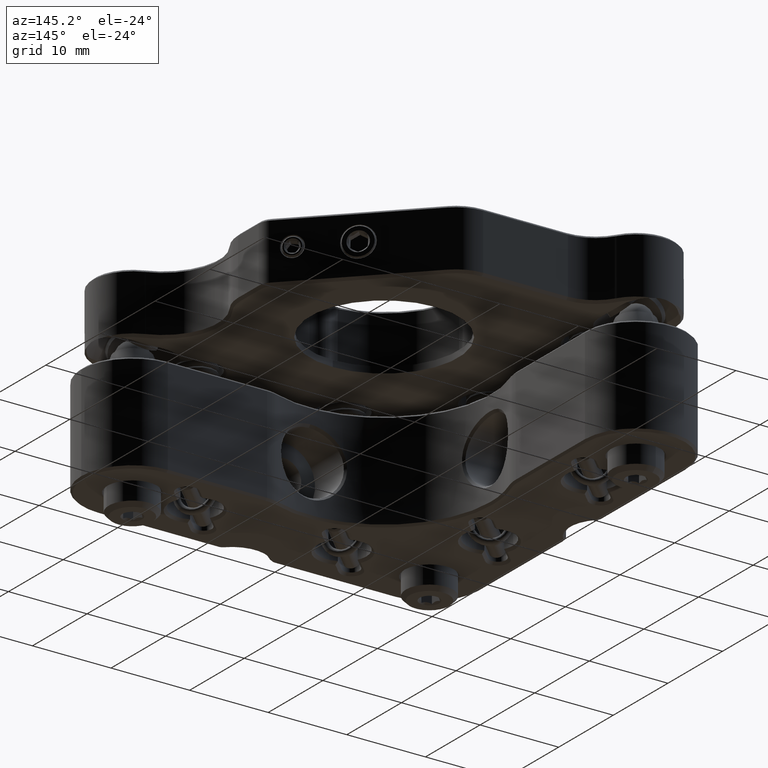
[diagram: clean part render]
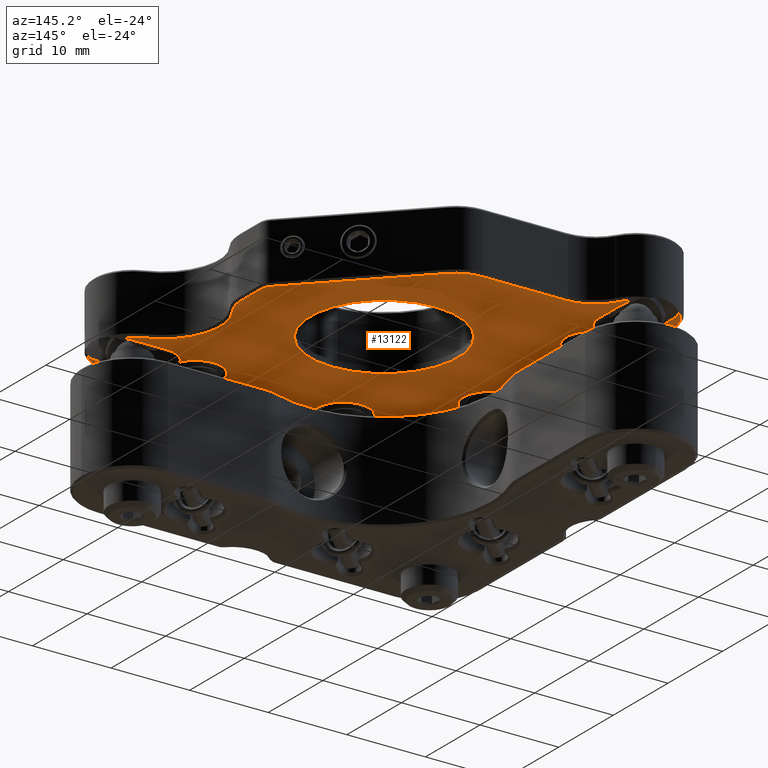
[diagram: same view with one face highlighted and labeled with its STEP entity id]
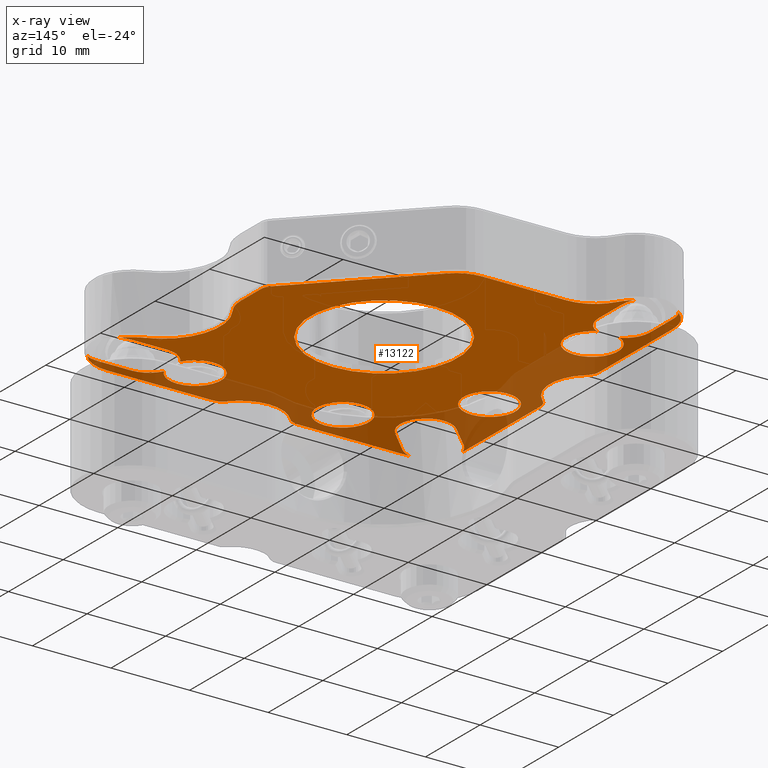
[diagram: x-ray of the same camera — body ghosted, the highlighted face saturated]
A machine part, auxiliary view. The second image highlights one B-rep face of the part: STEP entity #13122.
The next image is the same camera in x-ray: the body ghosted, the highlighted face saturated — about 24% of this face is hidden behind the body in this view.
In plain terms, the highlighted planar face has unit normal (0, 0, 1).
Its self-contained STEP definition (entity closure, byte-faithful):
#24 = DIRECTION ( 'NONE',  ( -0.000000000000000000, -0.000000000000000000, -1.000000000000000000 ) ) ;
#87 = AXIS2_PLACEMENT_3D ( 'NONE', #22900, #22756, #23325 ) ;
#147 = ORIENTED_EDGE ( 'NONE', *, *, #4367, .T. ) ;
#168 = CARTESIAN_POINT ( 'NONE',  ( -64.54999999999996874, -18.89999999999999503, -3.850000000000000089 ) ) ;
#213 = DIRECTION ( 'NONE',  ( 1.000000000000000000, 1.776246112369870620E-15, 0.000000000000000000 ) ) ;
#316 = DIRECTION ( 'NONE',  ( 0.000000000000000000, -1.000000000000000000, 0.000000000000000000 ) ) ;
#325 = ORIENTED_EDGE ( 'NONE', *, *, #14007, .F. ) ;
#347 = VERTEX_POINT ( 'NONE', #26387 ) ;
#403 = CARTESIAN_POINT ( 'NONE',  ( -47.79999999999997584, -26.39999999999998792, -3.850000000000000089 ) ) ;
#419 = CARTESIAN_POINT ( 'NONE',  ( -70.45581395348834519, -21.72557278207127496, -3.850000000000000089 ) ) ;
#480 = ORIENTED_EDGE ( 'NONE', *, *, #25135, .T. ) ;
#535 = DIRECTION ( 'NONE',  ( -0.000000000000000000, -0.000000000000000000, -1.000000000000000000 ) ) ;
#570 = EDGE_LOOP ( 'NONE', ( #21129, #5204, #21776, #9948, #24632, #19807, #5640, #18755, #22371, #2232, #10133, #24087, #4428, #25258, #13568, #19849, #4530, #19948, #17539, #18798, #19486, #18555, #27468, #10824, #1215, #325, #15592, #14142, #17555, #25760, #2236, #27836, #14401, #7783, #2796, #3482, #480, #4426, #20899, #27929, #12528, #7356, #26998, #10282, #23465, #24503 ) ) ;
#674 = CARTESIAN_POINT ( 'NONE',  ( -46.84695807969555403, 12.90000000000000036, -3.850000000000000089 ) ) ;
#706 = VERTEX_POINT ( 'NONE', #12438 ) ;
#771 = VERTEX_POINT ( 'NONE', #18768 ) ;
#774 = AXIS2_PLACEMENT_3D ( 'NONE', #5731, #10178, #18827 ) ;
#905 = DIRECTION ( 'NONE',  ( -0.000000000000000000, -0.000000000000000000, -1.000000000000000000 ) ) ;
#946 = DIRECTION ( 'NONE',  ( 1.000000000000000000, -5.521644416351492793E-16, 0.000000000000000000 ) ) ;
#1185 = AXIS2_PLACEMENT_3D ( 'NONE', #13558, #18143, #20011 ) ;
#1215 = ORIENTED_EDGE ( 'NONE', *, *, #13909, .T. ) ;
#1233 = CIRCLE ( 'NONE', #17741, 5.299999999999998934 ) ;
#1283 = CARTESIAN_POINT ( 'NONE',  ( -28.12218254069481205, -15.08162338159263349, -3.850000000000000089 ) ) ;
#1416 = DIRECTION ( 'NONE',  ( -1.000000000000000000, 0.000000000000000000, 0.000000000000000000 ) ) ;
#1616 = EDGE_CURVE ( 'NONE', #28156, #24555, #18795, .T. ) ;
#1716 = CIRCLE ( 'NONE', #11820, 3.249999999999999556 ) ;
#1724 = CARTESIAN_POINT ( 'NONE',  ( -32.14999999999999147, 16.74999999999999645, -3.850000000000000089 ) ) ;
#1770 = CIRCLE ( 'NONE', #14643, 3.300000000000004263 ) ;
#1904 = CARTESIAN_POINT ( 'NONE',  ( -43.74027370983946383, -22.99285714285713311, -3.850000000000000089 ) ) ;
#1958 = CARTESIAN_POINT ( 'NONE',  ( -32.71837661840734768, -19.67781745930522064, -3.850000000000000089 ) ) ;
#2004 = VERTEX_POINT ( 'NONE', #23100 ) ;
#2066 = VERTEX_POINT ( 'NONE', #24242 ) ;
#2103 = AXIS2_PLACEMENT_3D ( 'NONE', #6012, #16811, #20988 ) ;
#2160 = CARTESIAN_POINT ( 'NONE',  ( -24.24625680967455921, -19.55777984044790330, -3.850000000000000089 ) ) ;
#2183 = AXIS2_PLACEMENT_3D ( 'NONE', #19959, #26581, #24137 ) ;
#2216 = DIRECTION ( 'NONE',  ( -0.000000000000000000, -0.000000000000000000, -1.000000000000000000 ) ) ;
#2218 = VECTOR ( 'NONE', #27995, 1000.000000000000000 ) ;
#2232 = ORIENTED_EDGE ( 'NONE', *, *, #23336, .T. ) ;
#2236 = ORIENTED_EDGE ( 'NONE', *, *, #12034, .T. ) ;
#2252 = CARTESIAN_POINT ( 'NONE',  ( -30.42027957955107809, -17.37972042044892618, -3.850000000000000089 ) ) ;
#2279 = CARTESIAN_POINT ( 'NONE',  ( -57.19999999999998153, 0.000000000000000000, -3.850000000000000089 ) ) ;
#2342 = EDGE_CURVE ( 'NONE', #706, #27204, #12558, .T. ) ;
#2463 = CIRCLE ( 'NONE', #8365, 3.300000000000011369 ) ;
#2537 = VERTEX_POINT ( 'NONE', #11879 ) ;
#2545 = DIRECTION ( 'NONE',  ( -0.000000000000000000, -0.000000000000000000, -1.000000000000000000 ) ) ;
#2576 = CARTESIAN_POINT ( 'NONE',  ( -64.54999999999996874, -18.89999999999999503, -3.850000000000000089 ) ) ;
#2598 = AXIS2_PLACEMENT_3D ( 'NONE', #16527, #3578, #1416 ) ;
#2673 = CARTESIAN_POINT ( 'NONE',  ( -68.84999999999996589, -22.14999999999999858, -3.850000000000000089 ) ) ;
#2684 = CIRCLE ( 'NONE', #5883, 5.299999999999998934 ) ;
#2688 = DIRECTION ( 'NONE',  ( 1.000000000000000000, 0.000000000000000000, 0.000000000000000000 ) ) ;
#2760 = VERTEX_POINT ( 'NONE', #17305 ) ;
#2765 = DIRECTION ( 'NONE',  ( 1.000000000000000000, 0.000000000000000000, 0.000000000000000000 ) ) ;
#2796 = ORIENTED_EDGE ( 'NONE', *, *, #15566, .T. ) ;
#3009 = DIRECTION ( 'NONE',  ( -0.000000000000000000, -0.000000000000000000, -1.000000000000000000 ) ) ;
#3026 = VERTEX_POINT ( 'NONE', #26510 ) ;
#3167 = VERTEX_POINT ( 'NONE', #20736 ) ;
#3177 = AXIS2_PLACEMENT_3D ( 'NONE', #19184, #10679, #10968 ) ;
#3184 = CARTESIAN_POINT ( 'NONE',  ( -30.37303817960009766, 13.85299145299148016, -3.850000000000000089 ) ) ;
#3193 = AXIS2_PLACEMENT_3D ( 'NONE', #5786, #905, #3328 ) ;
#3213 = EDGE_CURVE ( 'NONE', #8082, #13686, #8332, .T. ) ;
#3290 = FACE_BOUND ( 'NONE', #14818, .T. ) ;
#3313 = VECTOR ( 'NONE', #10582, 999.9999999999998863 ) ;
#3328 = DIRECTION ( 'NONE',  ( 1.000000000000000000, -1.476360405086644655E-15, 0.000000000000000000 ) ) ;
#3331 = EDGE_CURVE ( 'NONE', #23707, #8220, #23052, .T. ) ;
#3345 = LINE ( 'NONE', #11862, #15680 ) ;
#3394 = AXIS2_PLACEMENT_3D ( 'NONE', #14781, #27873, #25285 ) ;
#3482 = ORIENTED_EDGE ( 'NONE', *, *, #1616, .T. ) ;
#3524 = CIRCLE ( 'NONE', #774, 9.399999999999998579 ) ;
#3531 = AXIS2_PLACEMENT_3D ( 'NONE', #6789, #19452, #8791 ) ;
#3569 = LINE ( 'NONE', #19098, #13155 ) ;
#3570 = CARTESIAN_POINT ( 'NONE',  ( -26.69999999999999574, -3.233067549749011224E-15, -3.850000000000000089 ) ) ;
#3578 = DIRECTION ( 'NONE',  ( 0.000000000000000000, 0.000000000000000000, 1.000000000000000000 ) ) ;
#3759 = VERTEX_POINT ( 'NONE', #5992 ) ;
#3793 = VECTOR ( 'NONE', #8656, 1000.000000000000000 ) ;
#3829 = DIRECTION ( 'NONE',  ( 1.000000000000000000, 0.000000000000000000, 0.000000000000000000 ) ) ;
#3936 = EDGE_CURVE ( 'NONE', #8548, #15872, #8705, .T. ) ;
#3983 = VERTEX_POINT ( 'NONE', #17205 ) ;
#4082 = CIRCLE ( 'NONE', #28421, 3.249999999999999556 ) ;
#4126 = EDGE_CURVE ( 'NONE', #22154, #25464, #12589, .T. ) ;
#4136 = VERTEX_POINT ( 'NONE', #16049 ) ;
#4160 = DIRECTION ( 'NONE',  ( -1.000000000000000000, 0.000000000000000000, 0.000000000000000000 ) ) ;
#4205 = VERTEX_POINT ( 'NONE', #2673 ) ;
#4321 = VERTEX_POINT ( 'NONE', #10266 ) ;
#4367 = EDGE_CURVE ( 'NONE', #25464, #22154, #2463, .T. ) ;
#4395 = CARTESIAN_POINT ( 'NONE',  ( -47.79999999999998295, -23.59999999999999432, -3.850000000000000089 ) ) ;
#4426 = ORIENTED_EDGE ( 'NONE', *, *, #14161, .T. ) ;
#4428 = ORIENTED_EDGE ( 'NONE', *, *, #3936, .T. ) ;
#4439 = AXIS2_PLACEMENT_3D ( 'NONE', #19403, #21701, #28180 ) ;
#4489 = CARTESIAN_POINT ( 'NONE',  ( -24.19999999999999218, 0.000000000000000000, -3.850000000000000089 ) ) ;
#4530 = ORIENTED_EDGE ( 'NONE', *, *, #23840, .T. ) ;
#4559 = CARTESIAN_POINT ( 'NONE',  ( -66.39999999999997726, -10.23974596215560595, -3.850000000000000089 ) ) ;
#4632 = VERTEX_POINT ( 'NONE', #3570 ) ;
#4650 = EDGE_CURVE ( 'NONE', #8398, #9191, #12137, .T. ) ;
#4656 = AXIS2_PLACEMENT_3D ( 'NONE', #2252, #6130, #14921 ) ;
#4688 = DIRECTION ( 'NONE',  ( 1.000000000000000000, 0.000000000000000000, 0.000000000000000000 ) ) ;
#4745 = VERTEX_POINT ( 'NONE', #14236 ) ;
#4793 = EDGE_CURVE ( 'NONE', #27850, #16151, #23109, .T. ) ;
#4859 = DIRECTION ( 'NONE',  ( -0.000000000000000000, -0.000000000000000000, -1.000000000000000000 ) ) ;
#4861 = DIRECTION ( 'NONE',  ( 1.000000000000000000, 0.000000000000000000, 0.000000000000000000 ) ) ;
#4992 = DIRECTION ( 'NONE',  ( 1.000000000000000000, 3.690901012716614397E-15, 0.000000000000000000 ) ) ;
#5192 = LINE ( 'NONE', #27199, #10837 ) ;
#5204 = ORIENTED_EDGE ( 'NONE', *, *, #22455, .T. ) ;
#5224 = AXIS2_PLACEMENT_3D ( 'NONE', #23424, #16812, #6144 ) ;
#5308 = DIRECTION ( 'NONE',  ( 1.000000000000000000, -2.952720810173289309E-15, 0.000000000000000000 ) ) ;
#5372 = VECTOR ( 'NONE', #946, 1000.000000000000000 ) ;
#5497 = VERTEX_POINT ( 'NONE', #21038 ) ;
#5542 = DIRECTION ( 'NONE',  ( 1.000000000000000000, 0.000000000000000000, 0.000000000000000000 ) ) ;
#5587 = VECTOR ( 'NONE', #22781, 1000.000000000000000 ) ;
#5637 = VERTEX_POINT ( 'NONE', #15682 ) ;
#5640 = ORIENTED_EDGE ( 'NONE', *, *, #3331, .T. ) ;
#5731 = CARTESIAN_POINT ( 'NONE',  ( -47.79999999999998295, 0.000000000000000000, -3.850000000000000089 ) ) ;
#5786 = CARTESIAN_POINT ( 'NONE',  ( -28.89999999999999147, 18.89999999999999503, -3.850000000000000089 ) ) ;
#5883 = AXIS2_PLACEMENT_3D ( 'NONE', #403, #13806, #4861 ) ;
#5961 = DIRECTION ( 'NONE',  ( 0.000000000000000000, 0.000000000000000000, 1.000000000000000000 ) ) ;
#5992 = CARTESIAN_POINT ( 'NONE',  ( -61.65299145299145067, -17.42696182039988173, -3.850000000000000089 ) ) ;
#6012 = CARTESIAN_POINT ( 'NONE',  ( -66.69999999999998863, -18.89999999999999147, -3.850000000000000089 ) ) ;
#6081 = DIRECTION ( 'NONE',  ( -0.000000000000000000, -0.000000000000000000, -1.000000000000000000 ) ) ;
#6130 = DIRECTION ( 'NONE',  ( -0.000000000000000000, -0.000000000000000000, 1.000000000000000000 ) ) ;
#6144 = DIRECTION ( 'NONE',  ( 1.000000000000000000, 0.000000000000000000, 0.000000000000000000 ) ) ;
#6298 = CARTESIAN_POINT ( 'NONE',  ( -28.89999999999998437, 10.90000000000005187, -3.850000000000000089 ) ) ;
#6383 = AXIS2_PLACEMENT_3D ( 'NONE', #15998, #9222, #2765 ) ;
#6443 = DIRECTION ( 'NONE',  ( 0.000000000000000000, 0.000000000000000000, 1.000000000000000000 ) ) ;
#6561 = VERTEX_POINT ( 'NONE', #18362 ) ;
#6776 = CIRCLE ( 'NONE', #13684, 3.249999999999999556 ) ;
#6789 = CARTESIAN_POINT ( 'NONE',  ( -50.56761902332480219, 15.90000000000000036, -3.850000000000000089 ) ) ;
#6912 = EDGE_CURVE ( 'NONE', #18071, #12511, #11319, .T. ) ;
#7015 = DIRECTION ( 'NONE',  ( -0.000000000000000000, -0.000000000000000000, -1.000000000000000000 ) ) ;
#7072 = CARTESIAN_POINT ( 'NONE',  ( -43.19999999999998153, -18.89999999999998792, -3.850000000000000089 ) ) ;
#7083 = EDGE_CURVE ( 'NONE', #5497, #21001, #1233, .T. ) ;
#7089 = CARTESIAN_POINT ( 'NONE',  ( -28.89999999999999147, -18.89999999999999503, -3.850000000000000089 ) ) ;
#7140 = AXIS2_PLACEMENT_3D ( 'NONE', #21664, #13202, #4688 ) ;
#7241 = EDGE_CURVE ( 'NONE', #2537, #6561, #24409, .T. ) ;
#7329 = CARTESIAN_POINT ( 'NONE',  ( -64.54999999999996874, -15.64999999999999680, -3.850000000000000089 ) ) ;
#7356 = ORIENTED_EDGE ( 'NONE', *, *, #17007, .T. ) ;
#7406 = LINE ( 'NONE', #20350, #5372 ) ;
#7426 = EDGE_CURVE ( 'NONE', #14419, #8548, #21657, .T. ) ;
#7601 = VECTOR ( 'NONE', #20586, 1000.000000000000000 ) ;
#7783 = ORIENTED_EDGE ( 'NONE', *, *, #15873, .T. ) ;
#7954 = VECTOR ( 'NONE', #17433, 1000.000000000000000 ) ;
#8040 = CIRCLE ( 'NONE', #11739, 1.700000000000000178 ) ;
#8082 = VERTEX_POINT ( 'NONE', #1724 ) ;
#8108 = AXIS2_PLACEMENT_3D ( 'NONE', #2576, #7015, #20117 ) ;
#8169 = DIRECTION ( 'NONE',  ( 0.000000000000000000, -1.000000000000000000, 0.000000000000000000 ) ) ;
#8220 = VERTEX_POINT ( 'NONE', #27718 ) ;
#8332 = CIRCLE ( 'NONE', #87, 3.249999999999999556 ) ;
#8355 = AXIS2_PLACEMENT_3D ( 'NONE', #168, #24, #316 ) ;
#8362 = CARTESIAN_POINT ( 'NONE',  ( -68.84999999999996589, -15.65000000000000036, -3.850000000000000089 ) ) ;
#8365 = AXIS2_PLACEMENT_3D ( 'NONE', #25520, #5961, #5542 ) ;
#8398 = VERTEX_POINT ( 'NONE', #17775 ) ;
#8507 = CIRCLE ( 'NONE', #1185, 3.249999999999999556 ) ;
#8515 = EDGE_CURVE ( 'NONE', #16151, #27850, #20452, .T. ) ;
#8548 = VERTEX_POINT ( 'NONE', #1958 ) ;
#8656 = DIRECTION ( 'NONE',  ( 1.000000000000000000, 4.440892098500625176E-16, 0.000000000000000000 ) ) ;
#8676 = DIRECTION ( 'NONE',  ( 1.000000000000000000, 0.000000000000000000, 0.000000000000000000 ) ) ;
#8705 = LINE ( 'NONE', #12902, #3313 ) ;
#8791 = DIRECTION ( 'NONE',  ( 1.000000000000000000, 0.000000000000000000, 0.000000000000000000 ) ) ;
#8805 = EDGE_CURVE ( 'NONE', #5637, #347, #8040, .T. ) ;
#8851 = AXIS2_PLACEMENT_3D ( 'NONE', #14244, #18118, #20561 ) ;
#8978 = AXIS2_PLACEMENT_3D ( 'NONE', #14671, #23432, #8169 ) ;
#9107 = CIRCLE ( 'NONE', #28395, 4.699999999999999289 ) ;
#9191 = VERTEX_POINT ( 'NONE', #16311 ) ;
#9213 = EDGE_CURVE ( 'NONE', #2066, #25190, #14298, .T. ) ;
#9217 = EDGE_CURVE ( 'NONE', #17184, #5637, #3345, .T. ) ;
#9222 = DIRECTION ( 'NONE',  ( 0.000000000000000000, 0.000000000000000000, 1.000000000000000000 ) ) ;
#9437 = DIRECTION ( 'NONE',  ( -0.000000000000000000, -0.000000000000000000, -1.000000000000000000 ) ) ;
#9480 = DIRECTION ( 'NONE',  ( 0.000000000000000000, 0.000000000000000000, 1.000000000000000000 ) ) ;
#9516 = ORIENTED_EDGE ( 'NONE', *, *, #4793, .T. ) ;
#9521 = DIRECTION ( 'NONE',  ( 1.000000000000000000, 0.000000000000000000, 0.000000000000000000 ) ) ;
#9544 = CIRCLE ( 'NONE', #24686, 4.700000000000002842 ) ;
#9718 = AXIS2_PLACEMENT_3D ( 'NONE', #27193, #16264, #25037 ) ;
#9806 = CARTESIAN_POINT ( 'NONE',  ( -64.54999999999998295, -22.14999999999999503, -3.850000000000000089 ) ) ;
#9948 = ORIENTED_EDGE ( 'NONE', *, *, #8805, .T. ) ;
#10133 = ORIENTED_EDGE ( 'NONE', *, *, #25196, .T. ) ;
#10178 = DIRECTION ( 'NONE',  ( -0.000000000000000000, -0.000000000000000000, -1.000000000000000000 ) ) ;
#10266 = CARTESIAN_POINT ( 'NONE',  ( -51.76970055134193416, 17.10208152801712700, -3.850000000000000089 ) ) ;
#10282 = ORIENTED_EDGE ( 'NONE', *, *, #20509, .T. ) ;
#10355 = CARTESIAN_POINT ( 'NONE',  ( -51.85972629016048785, -22.99285714285712956, -3.850000000000000089 ) ) ;
#10444 = LINE ( 'NONE', #4395, #2218 ) ;
#10532 = VERTEX_POINT ( 'NONE', #419 ) ;
#10556 = VERTEX_POINT ( 'NONE', #7329 ) ;
#10582 = DIRECTION ( 'NONE',  ( 0.7071067811865515695, -0.7071067811865435759, 0.000000000000000000 ) ) ;
#10641 = AXIS2_PLACEMENT_3D ( 'NONE', #18451, #25478, #25202 ) ;
#10679 = DIRECTION ( 'NONE',  ( -0.000000000000000000, -0.000000000000000000, -1.000000000000000000 ) ) ;
#10753 = DIRECTION ( 'NONE',  ( 1.000000000000000000, 0.000000000000000000, 0.000000000000000000 ) ) ;
#10824 = ORIENTED_EDGE ( 'NONE', *, *, #23999, .F. ) ;
#10837 = VECTOR ( 'NONE', #16129, 1000.000000000000114 ) ;
#10861 = CIRCLE ( 'NONE', #4439, 3.300000000000004263 ) ;
#10968 = DIRECTION ( 'NONE',  ( 1.000000000000000000, 0.000000000000000000, 0.000000000000000000 ) ) ;
#11154 = AXIS2_PLACEMENT_3D ( 'NONE', #24671, #14042, #213 ) ;
#11160 = VERTEX_POINT ( 'NONE', #9806 ) ;
#11319 = CIRCLE ( 'NONE', #14096, 4.699999999999999289 ) ;
#11349 = CARTESIAN_POINT ( 'NONE',  ( -28.89999999999998437, 10.90000000000005187, -3.850000000000000089 ) ) ;
#11386 = CARTESIAN_POINT ( 'NONE',  ( -25.64999999999999147, 21.04999999999999361, -3.850000000000000089 ) ) ;
#11630 = DIRECTION ( 'NONE',  ( 1.000000000000000000, 0.000000000000000000, 0.000000000000000000 ) ) ;
#11739 = AXIS2_PLACEMENT_3D ( 'NONE', #22393, #9437, #2688 ) ;
#11774 = DIRECTION ( 'NONE',  ( 1.000000000000000000, 7.381802025433217356E-16, 0.000000000000000000 ) ) ;
#11820 = AXIS2_PLACEMENT_3D ( 'NONE', #21237, #24213, #3829 ) ;
#11823 = LINE ( 'NONE', #13707, #7601 ) ;
#11862 = CARTESIAN_POINT ( 'NONE',  ( -24.19999999999999218, 0.000000000000000000, -3.850000000000000089 ) ) ;
#11879 = CARTESIAN_POINT ( 'NONE',  ( -32.19999999999999574, 10.90000000000005187, -3.850000000000000089 ) ) ;
#11953 = EDGE_CURVE ( 'NONE', #14554, #14101, #8507, .T. ) ;
#12034 = EDGE_CURVE ( 'NONE', #21001, #706, #11823, .T. ) ;
#12076 = FACE_BOUND ( 'NONE', #16445, .T. ) ;
#12103 = CIRCLE ( 'NONE', #5224, 7.300000000000007816 ) ;
#12112 = CARTESIAN_POINT ( 'NONE',  ( -28.89999999999999147, 21.04999999999999716, -3.850000000000000089 ) ) ;
#12137 = CIRCLE ( 'NONE', #3394, 3.249999999999999556 ) ;
#12214 = DIRECTION ( 'NONE',  ( 1.000000000000000000, -2.952720810173289309E-15, 0.000000000000000000 ) ) ;
#12288 = DIRECTION ( 'NONE',  ( 0.000000000000000000, -1.000000000000000000, 0.000000000000000000 ) ) ;
#12357 = CIRCLE ( 'NONE', #6383, 5.300000000000002487 ) ;
#12392 = EDGE_CURVE ( 'NONE', #18939, #3167, #19099, .T. ) ;
#12400 = CARTESIAN_POINT ( 'NONE',  ( -44.24893532725049283, 16.81666666666666288, -3.850000000000000089 ) ) ;
#12438 = CARTESIAN_POINT ( 'NONE',  ( -66.39999999999997726, 0.5249783362055344682, -3.850000000000000089 ) ) ;
#12511 = VERTEX_POINT ( 'NONE', #2160 ) ;
#12528 = ORIENTED_EDGE ( 'NONE', *, *, #3213, .T. ) ;
#12558 = CIRCLE ( 'NONE', #11154, 4.699999999999995737 ) ;
#12589 = CIRCLE ( 'NONE', #25894, 3.300000000000011369 ) ;
#12902 = CARTESIAN_POINT ( 'NONE',  ( -32.71837661840734768, -19.67781745930522064, -3.850000000000000089 ) ) ;
#12910 = EDGE_CURVE ( 'NONE', #21373, #5497, #15883, .T. ) ;
#12986 = LINE ( 'NONE', #8362, #3793 ) ;
#13122 = ADVANCED_FACE ( 'NONE', ( #25293, #3290, #12076, #20836 ), #27456, .F. ) ;
#13155 = VECTOR ( 'NONE', #16803, 1000.000000000000000 ) ;
#13202 = DIRECTION ( 'NONE',  ( 0.000000000000000000, 0.000000000000000000, 1.000000000000000000 ) ) ;
#13315 = ORIENTED_EDGE ( 'NONE', *, *, #8515, .T. ) ;
#13465 = DIRECTION ( 'NONE',  ( 0.000000000000000000, 0.000000000000000000, 1.000000000000000000 ) ) ;
#13477 = EDGE_CURVE ( 'NONE', #27204, #4321, #5192, .T. ) ;
#13503 = CARTESIAN_POINT ( 'NONE',  ( -66.69999999999998863, -18.89999999999999147, -3.850000000000000089 ) ) ;
#13558 = CARTESIAN_POINT ( 'NONE',  ( -28.89999999999999147, 21.04999999999999716, -3.850000000000000089 ) ) ;
#13568 = ORIENTED_EDGE ( 'NONE', *, *, #20697, .T. ) ;
#13675 = CARTESIAN_POINT ( 'NONE',  ( -28.89999999999999147, -18.89999999999999503, -3.850000000000000089 ) ) ;
#13684 = AXIS2_PLACEMENT_3D ( 'NONE', #16085, #535, #26868 ) ;
#13686 = VERTEX_POINT ( 'NONE', #3184 ) ;
#13707 = CARTESIAN_POINT ( 'NONE',  ( -66.39999999999997726, 0.000000000000000000, -3.850000000000000089 ) ) ;
#13726 = VERTEX_POINT ( 'NONE', #23867 ) ;
#13806 = DIRECTION ( 'NONE',  ( 0.000000000000000000, 0.000000000000000000, 1.000000000000000000 ) ) ;
#13909 = EDGE_CURVE ( 'NONE', #2004, #3759, #10861, .T. ) ;
#13918 = AXIS2_PLACEMENT_3D ( 'NONE', #23631, #6081, #15138 ) ;
#14007 = EDGE_CURVE ( 'NONE', #10556, #3759, #26954, .T. ) ;
#14042 = DIRECTION ( 'NONE',  ( -0.000000000000000000, -0.000000000000000000, -1.000000000000000000 ) ) ;
#14076 = EDGE_CURVE ( 'NONE', #3167, #18939, #3524, .T. ) ;
#14096 = AXIS2_PLACEMENT_3D ( 'NONE', #7089, #2216, #8676 ) ;
#14101 = VERTEX_POINT ( 'NONE', #23693 ) ;
#14125 = EDGE_CURVE ( 'NONE', #13726, #8082, #3569, .T. ) ;
#14142 = ORIENTED_EDGE ( 'NONE', *, *, #19269, .F. ) ;
#14159 = DIRECTION ( 'NONE',  ( 0.000000000000000000, 0.000000000000000000, 1.000000000000000000 ) ) ;
#14161 = EDGE_CURVE ( 'NONE', #4136, #21503, #19116, .T. ) ;
#14236 = CARTESIAN_POINT ( 'NONE',  ( -68.84999999999996589, -15.65000000000000036, -3.850000000000000089 ) ) ;
#14244 = CARTESIAN_POINT ( 'NONE',  ( -21.39999999999999147, -3.233067549749011224E-15, -3.850000000000000089 ) ) ;
#14298 = LINE ( 'NONE', #27522, #5587 ) ;
#14373 = ORIENTED_EDGE ( 'NONE', *, *, #12392, .F. ) ;
#14401 = ORIENTED_EDGE ( 'NONE', *, *, #13477, .T. ) ;
#14419 = VERTEX_POINT ( 'NONE', #20760 ) ;
#14554 = VERTEX_POINT ( 'NONE', #27797 ) ;
#14589 = AXIS2_PLACEMENT_3D ( 'NONE', #6298, #15075, #21826 ) ;
#14643 = AXIS2_PLACEMENT_3D ( 'NONE', #11349, #9480, #11630 ) ;
#14671 = CARTESIAN_POINT ( 'NONE',  ( -68.84999999999996589, -18.89999999999999858, -3.850000000000000089 ) ) ;
#14780 = DIRECTION ( 'NONE',  ( -0.000000000000000000, -0.000000000000000000, -1.000000000000000000 ) ) ;
#14781 = CARTESIAN_POINT ( 'NONE',  ( -28.89999999999999147, 16.74999999999999645, -3.850000000000000089 ) ) ;
#14818 = EDGE_LOOP ( 'NONE', ( #22510, #147 ) ) ;
#14874 = CARTESIAN_POINT ( 'NONE',  ( -32.20000000000000284, -7.899999999999997691, -3.850000000000000089 ) ) ;
#14921 = DIRECTION ( 'NONE',  ( 1.000000000000000000, 0.000000000000000000, 0.000000000000000000 ) ) ;
#15075 = DIRECTION ( 'NONE',  ( 0.000000000000000000, 0.000000000000000000, 1.000000000000000000 ) ) ;
#15138 = DIRECTION ( 'NONE',  ( 1.000000000000000000, 0.000000000000000000, 0.000000000000000000 ) ) ;
#15269 = VECTOR ( 'NONE', #19177, 1000.000000000000000 ) ;
#15566 = EDGE_CURVE ( 'NONE', #2760, #28156, #7406, .T. ) ;
#15592 = ORIENTED_EDGE ( 'NONE', *, *, #23891, .F. ) ;
#15680 = VECTOR ( 'NONE', #12288, 1000.000000000000000 ) ;
#15682 = CARTESIAN_POINT ( 'NONE',  ( -24.19999999999999218, 5.361902647381803000, -3.850000000000000089 ) ) ;
#15872 = VERTEX_POINT ( 'NONE', #24471 ) ;
#15873 = EDGE_CURVE ( 'NONE', #4321, #2760, #15943, .T. ) ;
#15883 = CIRCLE ( 'NONE', #2103, 4.699999999999995737 ) ;
#15907 = CARTESIAN_POINT ( 'NONE',  ( -39.89999999999997726, -18.89999999999998792, -3.850000000000000089 ) ) ;
#15938 = CARTESIAN_POINT ( 'NONE',  ( -24.19999999999999218, 18.89999999999999503, -3.850000000000000089 ) ) ;
#15943 = CIRCLE ( 'NONE', #3531, 1.700000000000000178 ) ;
#15998 = CARTESIAN_POINT ( 'NONE',  ( -21.39999999999999147, -3.233067549749011224E-15, -3.850000000000000089 ) ) ;
#16049 = CARTESIAN_POINT ( 'NONE',  ( -33.33120249543568292, 20.46666666666666146, -3.850000000000000089 ) ) ;
#16085 = CARTESIAN_POINT ( 'NONE',  ( -68.84999999999996589, -18.89999999999999858, -3.850000000000000089 ) ) ;
#16129 = DIRECTION ( 'NONE',  ( 0.7071067811865474617, 0.7071067811865474617, 0.000000000000000000 ) ) ;
#16151 = VERTEX_POINT ( 'NONE', #24620 ) ;
#16264 = DIRECTION ( 'NONE',  ( 0.000000000000000000, 0.000000000000000000, 1.000000000000000000 ) ) ;
#16311 = CARTESIAN_POINT ( 'NONE',  ( -25.64999999999999147, 16.75000000000000000, -3.850000000000000089 ) ) ;
#16355 = AXIS2_PLACEMENT_3D ( 'NONE', #21571, #19276, #4160 ) ;
#16445 = EDGE_LOOP ( 'NONE', ( #9516, #13315 ) ) ;
#16461 = CARTESIAN_POINT ( 'NONE',  ( -28.24222015955202636, -23.55374319032542019, -3.850000000000000089 ) ) ;
#16527 = CARTESIAN_POINT ( 'NONE',  ( -47.79999999999998295, 0.000000000000000000, -3.850000000000000089 ) ) ;
#16803 = DIRECTION ( 'NONE',  ( 0.000000000000000000, -1.000000000000000000, 0.000000000000000000 ) ) ;
#16811 = DIRECTION ( 'NONE',  ( -0.000000000000000000, -0.000000000000000000, -1.000000000000000000 ) ) ;
#16812 = DIRECTION ( 'NONE',  ( 0.000000000000000000, 0.000000000000000000, 1.000000000000000000 ) ) ;
#16970 = CIRCLE ( 'NONE', #3193, 4.699999999999999289 ) ;
#17007 = EDGE_CURVE ( 'NONE', #13686, #2537, #21008, .T. ) ;
#17089 = LINE ( 'NONE', #1283, #21736 ) ;
#17184 = VERTEX_POINT ( 'NONE', #15938 ) ;
#17205 = CARTESIAN_POINT ( 'NONE',  ( -53.16190264738178684, -23.59999999999999076, -3.850000000000000089 ) ) ;
#17296 = LINE ( 'NONE', #4489, #7954 ) ;
#17305 = CARTESIAN_POINT ( 'NONE',  ( -50.56761902332480219, 17.59999999999999787, -3.850000000000000089 ) ) ;
#17372 = CARTESIAN_POINT ( 'NONE',  ( -36.59999999999997300, -18.89999999999998792, -3.850000000000000089 ) ) ;
#17433 = DIRECTION ( 'NONE',  ( 0.000000000000000000, -1.000000000000000000, 0.000000000000000000 ) ) ;
#17539 = ORIENTED_EDGE ( 'NONE', *, *, #22057, .T. ) ;
#17555 = ORIENTED_EDGE ( 'NONE', *, *, #12910, .T. ) ;
#17614 = ORIENTED_EDGE ( 'NONE', *, *, #14076, .F. ) ;
#17741 = AXIS2_PLACEMENT_3D ( 'NONE', #18466, #14159, #27229 ) ;
#17775 = CARTESIAN_POINT ( 'NONE',  ( -27.42696182039987818, 13.85299145299148371, -3.850000000000000089 ) ) ;
#17868 = EDGE_CURVE ( 'NONE', #3983, #771, #10444, .T. ) ;
#18071 = VERTEX_POINT ( 'NONE', #19430 ) ;
#18118 = DIRECTION ( 'NONE',  ( 0.000000000000000000, 0.000000000000000000, 1.000000000000000000 ) ) ;
#18143 = DIRECTION ( 'NONE',  ( -0.000000000000000000, -0.000000000000000000, 1.000000000000000000 ) ) ;
#18146 = LINE ( 'NONE', #11386, #23135 ) ;
#18352 = AXIS2_PLACEMENT_3D ( 'NONE', #674, #2545, #4992 ) ;
#18362 = CARTESIAN_POINT ( 'NONE',  ( -25.59999999999998010, 10.90000000000005187, -3.850000000000000089 ) ) ;
#18451 = CARTESIAN_POINT ( 'NONE',  ( -25.89999999999999147, -5.361902647381807441, -3.850000000000000089 ) ) ;
#18466 = CARTESIAN_POINT ( 'NONE',  ( -71.69999999999998863, -10.23974596215560595, -3.850000000000000089 ) ) ;
#18555 = ORIENTED_EDGE ( 'NONE', *, *, #18564, .F. ) ;
#18564 = EDGE_CURVE ( 'NONE', #4205, #10532, #21390, .T. ) ;
#18755 = ORIENTED_EDGE ( 'NONE', *, *, #27952, .T. ) ;
#18768 = CARTESIAN_POINT ( 'NONE',  ( -66.69999999999998863, -23.59999999999999432, -3.850000000000000089 ) ) ;
#18795 = CIRCLE ( 'NONE', #18352, 4.699999999999995737 ) ;
#18798 = ORIENTED_EDGE ( 'NONE', *, *, #17868, .T. ) ;
#18827 = DIRECTION ( 'NONE',  ( -1.000000000000000000, 0.000000000000000000, 0.000000000000000000 ) ) ;
#18939 = VERTEX_POINT ( 'NONE', #2279 ) ;
#18976 = CIRCLE ( 'NONE', #8851, 5.300000000000002487 ) ;
#19049 = EDGE_CURVE ( 'NONE', #15872, #23735, #21012, .T. ) ;
#19092 = EDGE_CURVE ( 'NONE', #771, #10532, #9544, .T. ) ;
#19098 = CARTESIAN_POINT ( 'NONE',  ( -32.14999999999999147, 21.04999999999999361, -3.850000000000000089 ) ) ;
#19099 = CIRCLE ( 'NONE', #16355, 9.399999999999998579 ) ;
#19116 = CIRCLE ( 'NONE', #27833, 4.699999999999999289 ) ;
#19177 = DIRECTION ( 'NONE',  ( -1.000000000000000000, -4.440892098500625176E-16, 0.000000000000000000 ) ) ;
#19184 = CARTESIAN_POINT ( 'NONE',  ( -53.16190264738178684, -21.89999999999999503, -3.850000000000000089 ) ) ;
#19269 = EDGE_CURVE ( 'NONE', #21373, #4745, #6776, .T. ) ;
#19276 = DIRECTION ( 'NONE',  ( -0.000000000000000000, -0.000000000000000000, -1.000000000000000000 ) ) ;
#19403 = CARTESIAN_POINT ( 'NONE',  ( -58.70000000000003126, -18.89999999999999858, -3.850000000000000089 ) ) ;
#19430 = CARTESIAN_POINT ( 'NONE',  ( -24.19999999999999218, -18.89999999999999147, -3.850000000000000089 ) ) ;
#19452 = DIRECTION ( 'NONE',  ( -0.000000000000000000, -0.000000000000000000, -1.000000000000000000 ) ) ;
#19486 = ORIENTED_EDGE ( 'NONE', *, *, #19092, .T. ) ;
#19807 = ORIENTED_EDGE ( 'NONE', *, *, #21762, .T. ) ;
#19849 = ORIENTED_EDGE ( 'NONE', *, *, #9213, .T. ) ;
#19919 = EDGE_CURVE ( 'NONE', #21539, #28374, #2684, .T. ) ;
#19948 = ORIENTED_EDGE ( 'NONE', *, *, #19919, .T. ) ;
#19959 = CARTESIAN_POINT ( 'NONE',  ( -27.37972042044890486, -20.42027957955106743, -3.850000000000000089 ) ) ;
#20011 = DIRECTION ( 'NONE',  ( 1.000000000000000000, 0.000000000000000000, 0.000000000000000000 ) ) ;
#20117 = DIRECTION ( 'NONE',  ( 0.000000000000000000, -1.000000000000000000, 0.000000000000000000 ) ) ;
#20350 = CARTESIAN_POINT ( 'NONE',  ( -47.79999999999997584, 17.59999999999999432, -3.850000000000000089 ) ) ;
#20452 = CIRCLE ( 'NONE', #7140, 3.300000000000014921 ) ;
#20509 = EDGE_CURVE ( 'NONE', #6561, #8398, #1770, .T. ) ;
#20561 = DIRECTION ( 'NONE',  ( 1.000000000000000000, 0.000000000000000000, 0.000000000000000000 ) ) ;
#20586 = DIRECTION ( 'NONE',  ( 0.000000000000000000, 1.000000000000000000, 0.000000000000000000 ) ) ;
#20697 = EDGE_CURVE ( 'NONE', #23735, #2066, #9107, .T. ) ;
#20736 = CARTESIAN_POINT ( 'NONE',  ( -38.39999999999998437, -1.151167991198511931E-15, -3.850000000000000089 ) ) ;
#20760 = CARTESIAN_POINT ( 'NONE',  ( -28.12218254069481205, -15.08162338159263349, -3.850000000000000089 ) ) ;
#20767 = CARTESIAN_POINT ( 'NONE',  ( -70.45581395348837361, -16.07442721792873996, -3.850000000000000089 ) ) ;
#20782 = CIRCLE ( 'NONE', #13918, 1.700000000000000178 ) ;
#20836 = FACE_BOUND ( 'NONE', #21825, .T. ) ;
#20899 = ORIENTED_EDGE ( 'NONE', *, *, #22004, .T. ) ;
#20988 = DIRECTION ( 'NONE',  ( 1.000000000000000000, 4.429081215259937119E-15, 0.000000000000000000 ) ) ;
#21001 = VERTEX_POINT ( 'NONE', #4559 ) ;
#21008 = CIRCLE ( 'NONE', #14589, 3.300000000000004263 ) ;
#21012 = CIRCLE ( 'NONE', #2183, 3.249999999999999556 ) ;
#21038 = CARTESIAN_POINT ( 'NONE',  ( -69.04999999999998295, -14.82968060221313067, -3.850000000000000089 ) ) ;
#21129 = ORIENTED_EDGE ( 'NONE', *, *, #11953, .T. ) ;
#21237 = CARTESIAN_POINT ( 'NONE',  ( -27.37972042044890486, -20.42027957955106743, -3.850000000000000089 ) ) ;
#21332 = CARTESIAN_POINT ( 'NONE',  ( -31.72557278207126785, 22.65581395348837290, -3.850000000000000089 ) ) ;
#21373 = VERTEX_POINT ( 'NONE', #20767 ) ;
#21390 = CIRCLE ( 'NONE', #8978, 3.249999999999999556 ) ;
#21503 = VERTEX_POINT ( 'NONE', #21332 ) ;
#21538 = CARTESIAN_POINT ( 'NONE',  ( -28.89999999999999147, 18.89999999999999503, -3.850000000000000089 ) ) ;
#21539 = VERTEX_POINT ( 'NONE', #1904 ) ;
#21550 = CARTESIAN_POINT ( 'NONE',  ( -28.89999999999999147, -7.899999999999997691, -3.850000000000000089 ) ) ;
#21571 = CARTESIAN_POINT ( 'NONE',  ( -47.79999999999998295, 0.000000000000000000, -3.850000000000000089 ) ) ;
#21657 = CIRCLE ( 'NONE', #4656, 3.249999999999999556 ) ;
#21664 = CARTESIAN_POINT ( 'NONE',  ( -28.89999999999999147, -7.899999999999997691, -3.850000000000000089 ) ) ;
#21701 = DIRECTION ( 'NONE',  ( 0.000000000000000000, 0.000000000000000000, 1.000000000000000000 ) ) ;
#21736 = VECTOR ( 'NONE', #23557, 1000.000000000000000 ) ;
#21746 = CARTESIAN_POINT ( 'NONE',  ( -68.84999999999996589, -22.14999999999999858, -3.850000000000000089 ) ) ;
#21762 = EDGE_CURVE ( 'NONE', #4632, #23707, #12357, .T. ) ;
#21776 = ORIENTED_EDGE ( 'NONE', *, *, #9217, .T. ) ;
#21825 = EDGE_LOOP ( 'NONE', ( #14373, #17614 ) ) ;
#21826 = DIRECTION ( 'NONE',  ( 1.000000000000000000, 0.000000000000000000, 0.000000000000000000 ) ) ;
#22004 = EDGE_CURVE ( 'NONE', #21503, #13726, #4082, .T. ) ;
#22057 = EDGE_CURVE ( 'NONE', #28374, #3983, #25670, .T. ) ;
#22154 = VERTEX_POINT ( 'NONE', #7072 ) ;
#22323 = DIRECTION ( 'NONE',  ( 0.000000000000000000, 1.000000000000000000, 0.000000000000000000 ) ) ;
#22341 = CARTESIAN_POINT ( 'NONE',  ( -24.80714285714284983, -4.059726290160512008, -3.850000000000000089 ) ) ;
#22371 = ORIENTED_EDGE ( 'NONE', *, *, #6912, .T. ) ;
#22393 = CARTESIAN_POINT ( 'NONE',  ( -25.89999999999999147, 5.361902647381801224, -3.850000000000000089 ) ) ;
#22455 = EDGE_CURVE ( 'NONE', #14101, #17184, #16970, .T. ) ;
#22510 = ORIENTED_EDGE ( 'NONE', *, *, #4126, .T. ) ;
#22601 = CARTESIAN_POINT ( 'NONE',  ( -46.84695807969554693, 17.59999999999999432, -3.850000000000000089 ) ) ;
#22756 = DIRECTION ( 'NONE',  ( -0.000000000000000000, -0.000000000000000000, 1.000000000000000000 ) ) ;
#22781 = DIRECTION ( 'NONE',  ( -1.000000000000000000, 0.000000000000000000, 0.000000000000000000 ) ) ;
#22900 = CARTESIAN_POINT ( 'NONE',  ( -28.89999999999999147, 16.74999999999999645, -3.850000000000000089 ) ) ;
#23052 = CIRCLE ( 'NONE', #10641, 1.700000000000000178 ) ;
#23100 = CARTESIAN_POINT ( 'NONE',  ( -61.65299145299145067, -20.37303817960011187, -3.850000000000000089 ) ) ;
#23109 = CIRCLE ( 'NONE', #27238, 3.300000000000014921 ) ;
#23135 = VECTOR ( 'NONE', #22323, 1000.000000000000000 ) ;
#23325 = DIRECTION ( 'NONE',  ( 1.000000000000000000, 0.000000000000000000, 0.000000000000000000 ) ) ;
#23336 = EDGE_CURVE ( 'NONE', #12511, #3026, #1716, .T. ) ;
#23424 = CARTESIAN_POINT ( 'NONE',  ( -40.21370849898475086, 22.89999999999999503, -3.850000000000000089 ) ) ;
#23432 = DIRECTION ( 'NONE',  ( -0.000000000000000000, -0.000000000000000000, -1.000000000000000000 ) ) ;
#23465 = ORIENTED_EDGE ( 'NONE', *, *, #4650, .T. ) ;
#23536 = CARTESIAN_POINT ( 'NONE',  ( -65.02340187157675189, 3.848380207782308382, -3.850000000000000089 ) ) ;
#23557 = DIRECTION ( 'NONE',  ( -0.7071067811865513475, 0.7071067811865436870, 0.000000000000000000 ) ) ;
#23631 = CARTESIAN_POINT ( 'NONE',  ( -42.43809735261816485, -21.89999999999999503, -3.850000000000000089 ) ) ;
#23693 = CARTESIAN_POINT ( 'NONE',  ( -26.07442721792871154, 22.65581395348836935, -3.850000000000000089 ) ) ;
#23707 = VERTEX_POINT ( 'NONE', #22341 ) ;
#23735 = VERTEX_POINT ( 'NONE', #16461 ) ;
#23840 = EDGE_CURVE ( 'NONE', #25190, #21539, #20782, .T. ) ;
#23867 = CARTESIAN_POINT ( 'NONE',  ( -32.14999999999999147, 21.04999999999999361, -3.850000000000000089 ) ) ;
#23891 = EDGE_CURVE ( 'NONE', #4745, #10556, #12986, .T. ) ;
#23917 = EDGE_CURVE ( 'NONE', #11160, #4205, #25511, .T. ) ;
#23999 = EDGE_CURVE ( 'NONE', #2004, #11160, #26751, .T. ) ;
#24087 = ORIENTED_EDGE ( 'NONE', *, *, #7426, .T. ) ;
#24137 = DIRECTION ( 'NONE',  ( 1.000000000000000000, 0.000000000000000000, 0.000000000000000000 ) ) ;
#24213 = DIRECTION ( 'NONE',  ( -0.000000000000000000, -0.000000000000000000, 1.000000000000000000 ) ) ;
#24242 = CARTESIAN_POINT ( 'NONE',  ( -28.89999999999999147, -23.59999999999999432, -3.850000000000000089 ) ) ;
#24409 = CIRCLE ( 'NONE', #9718, 3.300000000000004263 ) ;
#24471 = CARTESIAN_POINT ( 'NONE',  ( -29.67781745930517090, -22.71837661840735834, -3.850000000000000089 ) ) ;
#24503 = ORIENTED_EDGE ( 'NONE', *, *, #28256, .T. ) ;
#24522 = DIRECTION ( 'NONE',  ( 1.000000000000000000, 0.000000000000000000, 0.000000000000000000 ) ) ;
#24555 = VERTEX_POINT ( 'NONE', #12400 ) ;
#24620 = CARTESIAN_POINT ( 'NONE',  ( -25.59999999999997655, -7.899999999999997691, -3.850000000000000089 ) ) ;
#24632 = ORIENTED_EDGE ( 'NONE', *, *, #25011, .T. ) ;
#24671 = CARTESIAN_POINT ( 'NONE',  ( -61.69999999999997442, 0.5249783362055344682, -3.850000000000000089 ) ) ;
#24686 = AXIS2_PLACEMENT_3D ( 'NONE', #13503, #4859, #11774 ) ;
#24904 = DIRECTION ( 'NONE',  ( -0.000000000000000000, -0.000000000000000000, 1.000000000000000000 ) ) ;
#25011 = EDGE_CURVE ( 'NONE', #347, #4632, #18976, .T. ) ;
#25037 = DIRECTION ( 'NONE',  ( 1.000000000000000000, 0.000000000000000000, 0.000000000000000000 ) ) ;
#25135 = EDGE_CURVE ( 'NONE', #24555, #4136, #12103, .T. ) ;
#25190 = VERTEX_POINT ( 'NONE', #25435 ) ;
#25196 = EDGE_CURVE ( 'NONE', #3026, #14419, #17089, .T. ) ;
#25202 = DIRECTION ( 'NONE',  ( 1.000000000000000000, 4.591915083468018687E-15, 0.000000000000000000 ) ) ;
#25258 = ORIENTED_EDGE ( 'NONE', *, *, #19049, .T. ) ;
#25285 = DIRECTION ( 'NONE',  ( 1.000000000000000000, 0.000000000000000000, 0.000000000000000000 ) ) ;
#25293 = FACE_OUTER_BOUND ( 'NONE', #570, .T. ) ;
#25435 = CARTESIAN_POINT ( 'NONE',  ( -42.43809735261816485, -23.59999999999999432, -3.850000000000000089 ) ) ;
#25464 = VERTEX_POINT ( 'NONE', #17372 ) ;
#25478 = DIRECTION ( 'NONE',  ( -0.000000000000000000, -0.000000000000000000, -1.000000000000000000 ) ) ;
#25511 = LINE ( 'NONE', #21746, #15269 ) ;
#25520 = CARTESIAN_POINT ( 'NONE',  ( -39.89999999999997726, -18.89999999999998792, -3.850000000000000089 ) ) ;
#25670 = CIRCLE ( 'NONE', #3177, 1.699999999999993072 ) ;
#25760 = ORIENTED_EDGE ( 'NONE', *, *, #7083, .T. ) ;
#25894 = AXIS2_PLACEMENT_3D ( 'NONE', #15907, #13465, #24522 ) ;
#26387 = CARTESIAN_POINT ( 'NONE',  ( -24.80714285714284983, 4.059726290160506679, -3.850000000000000089 ) ) ;
#26510 = CARTESIAN_POINT ( 'NONE',  ( -25.08162338159263527, -18.12218254069477297, -3.850000000000000089 ) ) ;
#26581 = DIRECTION ( 'NONE',  ( -0.000000000000000000, -0.000000000000000000, 1.000000000000000000 ) ) ;
#26751 = CIRCLE ( 'NONE', #8355, 3.249999999999999556 ) ;
#26868 = DIRECTION ( 'NONE',  ( 0.000000000000000000, -1.000000000000000000, 0.000000000000000000 ) ) ;
#26954 = CIRCLE ( 'NONE', #8108, 3.249999999999999556 ) ;
#26998 = ORIENTED_EDGE ( 'NONE', *, *, #7241, .T. ) ;
#27193 = CARTESIAN_POINT ( 'NONE',  ( -28.89999999999998437, 10.90000000000005187, -3.850000000000000089 ) ) ;
#27199 = CARTESIAN_POINT ( 'NONE',  ( -58.33589103967952383, 10.53589103967953911, -3.850000000000000089 ) ) ;
#27204 = VERTEX_POINT ( 'NONE', #23536 ) ;
#27229 = DIRECTION ( 'NONE',  ( 1.000000000000000000, 0.000000000000000000, 0.000000000000000000 ) ) ;
#27238 = AXIS2_PLACEMENT_3D ( 'NONE', #21550, #6443, #10753 ) ;
#27456 = PLANE ( 'NONE',  #2598 ) ;
#27468 = ORIENTED_EDGE ( 'NONE', *, *, #23917, .F. ) ;
#27522 = CARTESIAN_POINT ( 'NONE',  ( -47.79999999999998295, -23.59999999999999432, -3.850000000000000089 ) ) ;
#27718 = CARTESIAN_POINT ( 'NONE',  ( -24.19999999999999218, -5.361902647381809217, -3.850000000000000089 ) ) ;
#27797 = CARTESIAN_POINT ( 'NONE',  ( -25.64999999999999147, 21.04999999999999361, -3.850000000000000089 ) ) ;
#27833 = AXIS2_PLACEMENT_3D ( 'NONE', #21538, #14780, #12214 ) ;
#27836 = ORIENTED_EDGE ( 'NONE', *, *, #2342, .T. ) ;
#27850 = VERTEX_POINT ( 'NONE', #14874 ) ;
#27873 = DIRECTION ( 'NONE',  ( -0.000000000000000000, -0.000000000000000000, 1.000000000000000000 ) ) ;
#27929 = ORIENTED_EDGE ( 'NONE', *, *, #14125, .T. ) ;
#27952 = EDGE_CURVE ( 'NONE', #8220, #18071, #17296, .T. ) ;
#27995 = DIRECTION ( 'NONE',  ( -1.000000000000000000, 0.000000000000000000, 0.000000000000000000 ) ) ;
#28156 = VERTEX_POINT ( 'NONE', #22601 ) ;
#28180 = DIRECTION ( 'NONE',  ( 1.000000000000000000, 0.000000000000000000, 0.000000000000000000 ) ) ;
#28256 = EDGE_CURVE ( 'NONE', #9191, #14554, #18146, .T. ) ;
#28374 = VERTEX_POINT ( 'NONE', #10355 ) ;
#28395 = AXIS2_PLACEMENT_3D ( 'NONE', #13675, #3009, #5308 ) ;
#28421 = AXIS2_PLACEMENT_3D ( 'NONE', #12112, #24904, #9521 ) ;